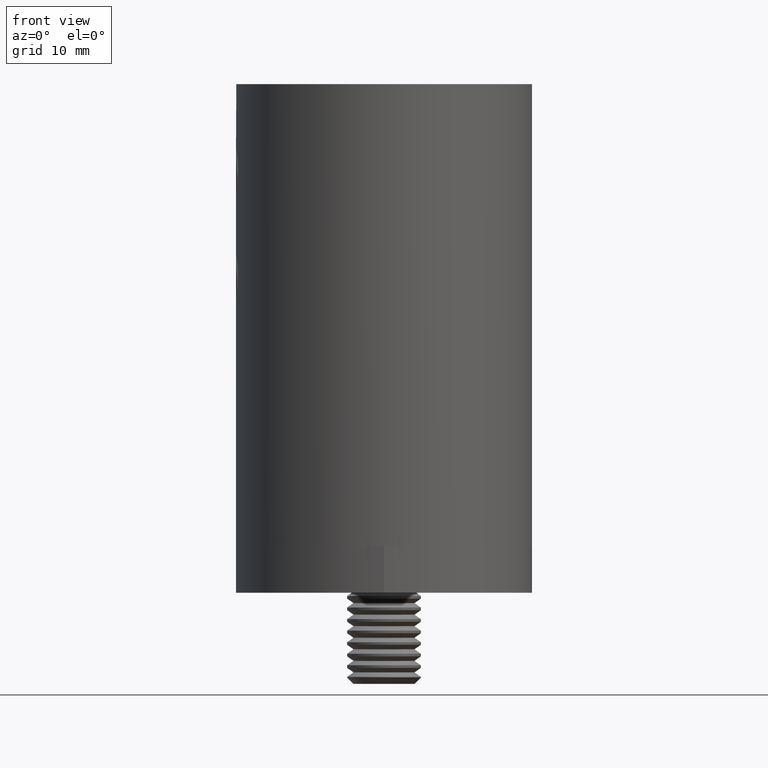
[diagram: clean part render]
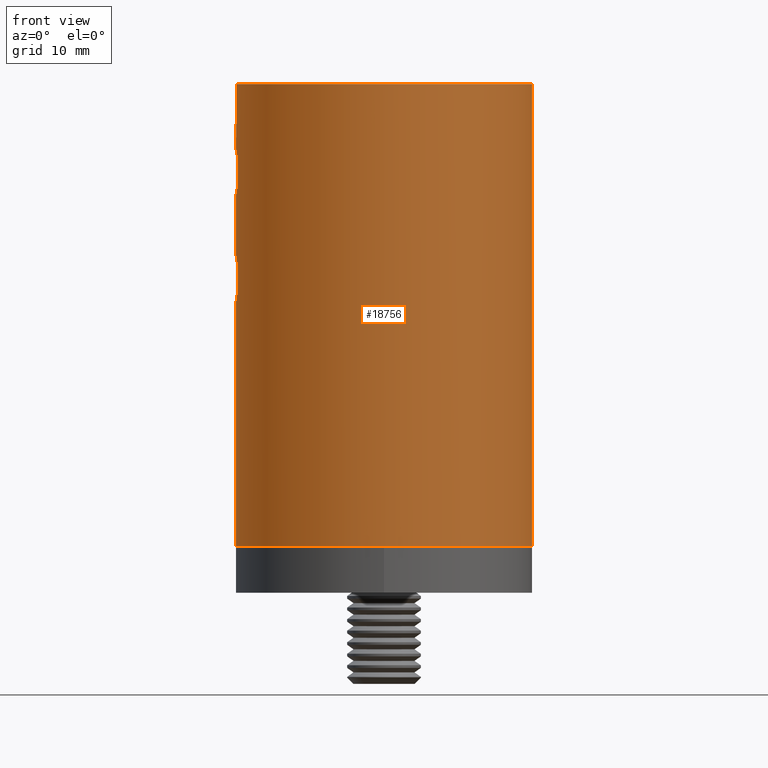
[diagram: same view with one face highlighted and labeled with its STEP entity id]
A machine part, front view. The second image highlights one B-rep face of the part: STEP entity #18756.
In plain terms, the highlighted cylindrical surface (bore or boss wall) has radius 16 mm, axis along (0, 0, 1).
Its self-contained STEP definition (entity closure, byte-faithful):
#7 = CARTESIAN_POINT ( 'NONE',  ( -15.80350251168070130, -2.499861672707218041, -9.667306376764686959 ) ) ;
#317 = CARTESIAN_POINT ( 'NONE',  ( -15.87640092462452124, -1.987022739836275420, -22.52588724854756208 ) ) ;
#390 = CARTESIAN_POINT ( 'NONE',  ( -15.82324364191536503, -2.372543552883941143, -20.19512136196161123 ) ) ;
#466 = CARTESIAN_POINT ( 'NONE',  ( -15.80606710648459945, 2.483805029018752997, -9.827817169408566755 ) ) ;
#534 = CARTESIAN_POINT ( 'NONE',  ( -15.96240569125737352, -1.106495572119110093, -23.24770843532474274 ) ) ;
#679 = CARTESIAN_POINT ( 'NONE',  ( -15.82339770301563142, 2.371509930957719448, -8.692264381868060497 ) ) ;
#722 = CARTESIAN_POINT ( 'NONE',  ( 8.150000000000011013, 13.76871453694933045, 0.000000000000000000 ) ) ;
#746 = CARTESIAN_POINT ( 'NONE',  ( -15.80346596981614304, 2.500092668231060689, -9.661891237243118269 ) ) ;
#754 = CARTESIAN_POINT ( 'NONE',  ( -15.95309248088372733, -1.260768949626729141, -7.316775439706733941 ) ) ;
#893 = CARTESIAN_POINT ( 'NONE',  ( -15.84151050614817535, -2.247342240368210842, -8.392640353381752405 ) ) ;
#928 = CARTESIAN_POINT ( 'NONE',  ( 1.252940556555171447, 15.95144872720778650, -39.83048293113979099 ) ) ;
#996 = CARTESIAN_POINT ( 'NONE',  ( 0.000000000000000000, 0.000000000000000000, -33.00000000000000000 ) ) ;
#997 = CARTESIAN_POINT ( 'NONE',  ( 1.525956392937325656, 15.92764525334669479, -43.98694218873795592 ) ) ;
#1066 = CARTESIAN_POINT ( 'NONE',  ( 1.109231536206027657, 15.96222279634701735, -44.24642170904224514 ) ) ;
#1203 = CARTESIAN_POINT ( 'NONE',  ( -2.245344190651986427, 15.84179535043164400, -43.11145182841886481 ) ) ;
#1242 = CARTESIAN_POINT ( 'NONE',  ( -15.92774250322208296, -1.525047224483064845, -11.48774827025959056 ) ) ;
#1331 = CARTESIAN_POINT ( 'NONE',  ( -0.3288858443642667662, 15.99743546037499975, -39.51626077848827379 ) ) ;
#1383 = DIRECTION ( 'NONE',  ( 0.000000000000000000, 0.000000000000000000, 1.000000000000000000 ) ) ;
#1461 = AXIS2_PLACEMENT_3D ( 'NONE', #996, #5621, #20538 ) ;
#1479 = CARTESIAN_POINT ( 'NONE',  ( -15.80345902061458929, -2.500136596893098861, -9.336853430154215872 ) ) ;
#1933 = CARTESIAN_POINT ( 'NONE',  ( -15.84159404494869783, 2.246747056407899290, -19.89156694114959123 ) ) ;
#1973 = CARTESIAN_POINT ( 'NONE',  ( -8.150000000000000355, 13.76871453694933578, -50.00000000000000000 ) ) ;
#2004 = CARTESIAN_POINT ( 'NONE',  ( -15.91481673507199446, 1.652882547917919220, -19.11732021938126636 ) ) ;
#2071 = CARTESIAN_POINT ( 'NONE',  ( -15.88922248633940093, 1.883088210293350384, -19.34758278094893669 ) ) ;
#2072 = CARTESIAN_POINT ( 'NONE',  ( -15.91492567410532644, 1.651926334815732922, -11.38368295266011287 ) ) ;
#2105 = ORIENTED_EDGE ( 'NONE', *, *, #8263, .F. ) ;
#2146 = CARTESIAN_POINT ( 'NONE',  ( -15.80350251168070486, -2.499861672707218485, -21.16730637676468163 ) ) ;
#2148 = CARTESIAN_POINT ( 'NONE',  ( -15.98755810445062409, 0.6509587533249484581, -11.91930164876156972 ) ) ;
#2216 = CARTESIAN_POINT ( 'NONE',  ( -15.95144872720779361, 1.252940556555169227, -18.83048293113980165 ) ) ;
#2363 = CARTESIAN_POINT ( 'NONE',  ( -15.84152337852460413, 2.247254387776697726, -10.60757795733184139 ) ) ;
#2373 = CARTESIAN_POINT ( 'NONE',  ( -15.82324364191535437, -2.372543552883940698, -8.695121361961600570 ) ) ;
#2429 = CARTESIAN_POINT ( 'NONE',  ( -15.99999999999999289, 1.084202172485504434E-16, -18.50000000000002487 ) ) ;
#2549 = CARTESIAN_POINT ( 'NONE',  ( -1.525047224483061736, 15.92774250322208296, -43.98774827025957990 ) ) ;
#2624 = CARTESIAN_POINT ( 'NONE',  ( 0.8068163506865948520, 15.98036376761717925, -39.62810500875100672 ) ) ;
#2692 = CARTESIAN_POINT ( 'NONE',  ( -2.500136596893099306, 15.80345902061458574, -41.83685343015421410 ) ) ;
#2764 = CARTESIAN_POINT ( 'NONE',  ( -2.247342240368209065, 15.84151050614817891, -40.89264035338172931 ) ) ;
#2834 = CARTESIAN_POINT ( 'NONE',  ( 8.150000000000000355, 13.76871453694934111, -33.00000000000000000 ) ) ;
#2835 = FACE_BOUND ( 'NONE', #10862, .T. ) ;
#2841 = CARTESIAN_POINT ( 'NONE',  ( 0.6509587533249504565, 15.98755810445062409, -44.41930164876154663 ) ) ;
#2961 = CIRCLE ( 'NONE', #1461, 16.00000000000000000 ) ;
#3237 = DIRECTION ( 'NONE',  ( 1.000000000000000000, 0.000000000000000000, 0.000000000000000000 ) ) ;
#3566 = ORIENTED_EDGE ( 'NONE', *, *, #7798, .F. ) ;
#3598 = CARTESIAN_POINT ( 'NONE',  ( -15.96240569125737707, -1.106495572119111204, -11.74770843532475162 ) ) ;
#3656 = CARTESIAN_POINT ( 'NONE',  ( -15.85233394127915574, -2.170684478348998692, -19.74906386734654617 ) ) ;
#3728 = CARTESIAN_POINT ( 'NONE',  ( -15.80349541719041895, 2.499906519796543769, -20.83525924997882228 ) ) ;
#3730 = CARTESIAN_POINT ( 'NONE',  ( -15.92764525334669479, 1.525956392937322326, -11.48694218873796125 ) ) ;
#3802 = CARTESIAN_POINT ( 'NONE',  ( -15.85253555748232479, 2.169241836718339922, -19.74644636522889130 ) ) ;
#3830 = LINE ( 'NONE', #21035, #9895 ) ;
#3873 = CARTESIAN_POINT ( 'NONE',  ( -15.92774250322207763, -1.525047224483062402, -22.98774827025959411 ) ) ;
#3939 = DIRECTION ( 'NONE',  ( 1.000000000000000000, 0.000000000000000000, 0.000000000000000000 ) ) ;
#3959 = CARTESIAN_POINT ( 'NONE',  ( -15.85233394127915574, -2.170684478349000468, -8.249063867346544399 ) ) ;
#4097 = CARTESIAN_POINT ( 'NONE',  ( -15.81585894962995376, -2.420668142417810476, -8.854265049272004973 ) ) ;
#4207 = CARTESIAN_POINT ( 'NONE',  ( -2.168402107178430516, 15.85264640334946229, -43.25484005574040935 ) ) ;
#4273 = CARTESIAN_POINT ( 'NONE',  ( -1.881455542367962641, 15.88941756032911634, -43.65429087891313742 ) ) ;
#4343 = CARTESIAN_POINT ( 'NONE',  ( -2.419509985083067249, 15.81603671450187676, -42.65002793951062898 ) ) ;
#4408 = CIRCLE ( 'NONE', #17376, 16.00000000000000000 ) ;
#4411 = CARTESIAN_POINT ( 'NONE',  ( 1.988290596189302928, 15.87624052084763626, -43.52419756693325326 ) ) ;
#4488 = CARTESIAN_POINT ( 'NONE',  ( 2.246747056407895293, 15.84159404494869783, -40.89156694114956991 ) ) ;
#4616 = AXIS2_PLACEMENT_3D ( 'NONE', #18712, #13667, #3939 ) ;
#4627 = EDGE_CURVE ( 'NONE', #14995, #14995, #4408, .T. ) ;
#4739 = LINE ( 'NONE', #1973, #6518 ) ;
#4856 = DIRECTION ( 'NONE',  ( 1.000000000000000000, 0.000000000000000000, 0.000000000000000000 ) ) ;
#5225 = CARTESIAN_POINT ( 'NONE',  ( -15.98767710712706247, 0.6479051388432867098, -18.57991559567075157 ) ) ;
#5295 = CARTESIAN_POINT ( 'NONE',  ( -15.81585894962996086, -2.420668142417813140, -20.35426504927201563 ) ) ;
#5362 = CARTESIAN_POINT ( 'NONE',  ( -15.95151097178185218, -1.252217234737674989, -23.16999175571001857 ) ) ;
#5437 = CARTESIAN_POINT ( 'NONE',  ( -15.92764525334669123, 1.525956392937322770, -22.98694218873797013 ) ) ;
#5439 = CARTESIAN_POINT ( 'NONE',  ( -15.85255037896791563, 2.169091757621978811, -10.75360227542730662 ) ) ;
#5553 = VERTEX_POINT ( 'NONE', #5870 ) ;
#5579 = CARTESIAN_POINT ( 'NONE',  ( -15.87640092462451413, -1.987022739836275864, -11.02588724854756030 ) ) ;
#5589 = CARTESIAN_POINT ( 'NONE',  ( -16.00000000000000000, -8.131516293641283255E-17, -7.000000000000026645 ) ) ;
#5621 = DIRECTION ( 'NONE',  ( -0.000000000000000000, -0.000000000000000000, 1.000000000000000000 ) ) ;
#5649 = CARTESIAN_POINT ( 'NONE',  ( -15.80604236739318758, 2.483965348626151037, -9.172886747353933501 ) ) ;
#5728 = CARTESIAN_POINT ( 'NONE',  ( -15.88910040803500756, -1.884110435080141421, -7.848755225032656213 ) ) ;
#5761 = CARTESIAN_POINT ( 'NONE',  ( -15.80612643001855488, -2.483427711985339847, -9.830381127494234761 ) ) ;
#5818 = CARTESIAN_POINT ( 'NONE',  ( -2.483427711985339847, 15.80612643001855488, -42.33038112749422766 ) ) ;
#5870 = CARTESIAN_POINT ( 'NONE',  ( -8.150000000000000355, 13.76871453694933578, 0.000000000000000000 ) ) ;
#5898 = CARTESIAN_POINT ( 'NONE',  ( 2.483965348626150149, 15.80604236739319113, -41.67288674735393528 ) ) ;
#5922 = CARTESIAN_POINT ( 'NONE',  ( -15.85264640334946229, -2.168402107178428739, -10.75484005574043067 ) ) ;
#5970 = CARTESIAN_POINT ( 'NONE',  ( -2.170684478349001800, 15.85233394127915219, -40.74906386734653552 ) ) ;
#6037 = CARTESIAN_POINT ( 'NONE',  ( -1.884110435080143198, 15.88910040803500756, -40.34875522503264023 ) ) ;
#6104 = CARTESIAN_POINT ( 'NONE',  ( 1.109447262463670647, 15.96220866737805011, -39.75367739515019139 ) ) ;
#6116 = ORIENTED_EDGE ( 'NONE', *, *, #18222, .F. ) ;
#6170 = CARTESIAN_POINT ( 'NONE',  ( -1.897353801849632760E-16, 16.00000000000000355, -39.50000000000003553 ) ) ;
#6320 = ORIENTED_EDGE ( 'NONE', *, *, #4627, .T. ) ;
#6379 = ORIENTED_EDGE ( 'NONE', *, *, #9067, .F. ) ;
#6518 = VECTOR ( 'NONE', #8309, 1000.000000000000000 ) ;
#6567 = CARTESIAN_POINT ( 'NONE',  ( -15.91503527193069445, -1.650793038997938389, -11.38452530159674758 ) ) ;
#6831 = CARTESIAN_POINT ( 'NONE',  ( -15.96222279634701025, 1.109231536206024549, -23.24642170904225935 ) ) ;
#6983 = CARTESIAN_POINT ( 'NONE',  ( -15.96220866737805011, 1.109447262463672201, -7.253677395150219809 ) ) ;
#7093 = CARTESIAN_POINT ( 'NONE',  ( -16.00001971032907022, -0.3255837222652486207, -12.00012614611530282 ) ) ;
#7200 = CARTESIAN_POINT ( 'NONE',  ( -15.99999999999999289, -0.1654332363785441795, -18.50000000000002132 ) ) ;
#7201 = CARTESIAN_POINT ( 'NONE',  ( -15.92778911225276772, 1.524503371790981499, -7.511896929298052861 ) ) ;
#7340 = CARTESIAN_POINT ( 'NONE',  ( -15.98020123595264153, -0.8098413242424427061, -7.129207097656609093 ) ) ;
#7374 = CARTESIAN_POINT ( 'NONE',  ( 0.3301022249100266648, 15.99739960002328409, -44.48350564471681423 ) ) ;
#7454 = CARTESIAN_POINT ( 'NONE',  ( 0.1654332363785450122, 16.00000000000000355, -39.50000000000002842 ) ) ;
#7525 = CARTESIAN_POINT ( 'NONE',  ( 2.371509930957718559, 15.82339770301563497, -41.19226438186804984 ) ) ;
#7592 = CARTESIAN_POINT ( 'NONE',  ( -1.252217234737675655, 15.95151097178185573, -44.16999175571002212 ) ) ;
#7664 = CARTESIAN_POINT ( 'NONE',  ( -1.539172029433665267, 15.92747579174406347, -40.00328389159881937 ) ) ;
#7798 = EDGE_CURVE ( 'NONE', #8860, #13907, #3830, .T. ) ;
#7916 = CARTESIAN_POINT ( 'NONE',  ( 16.00000000000000000, 0.000000000000000000, -50.00000000000000000 ) ) ;
#8198 = CARTESIAN_POINT ( 'NONE',  ( -15.88941756032911279, -1.881455542367965084, -11.15429087891314452 ) ) ;
#8263 = EDGE_CURVE ( 'NONE', #16271, #16271, #15780, .T. ) ;
#8309 = DIRECTION ( 'NONE',  ( 0.000000000000000000, 0.000000000000000000, 1.000000000000000000 ) ) ;
#8397 = CARTESIAN_POINT ( 'NONE',  ( -15.80604236739318758, 2.483965348626150149, -20.67288674735393528 ) ) ;
#8477 = CARTESIAN_POINT ( 'NONE',  ( -15.82343172302560674, -2.371299003963624141, -21.80860171604526343 ) ) ;
#8547 = CARTESIAN_POINT ( 'NONE',  ( -15.81597365182931014, 2.419921949467492617, -21.64863647540309444 ) ) ;
#8619 = CARTESIAN_POINT ( 'NONE',  ( -15.91503527193069445, -1.650793038997937501, -22.88452530159674936 ) ) ;
#8691 = CARTESIAN_POINT ( 'NONE',  ( -15.80606710648460300, 2.483805029018752553, -21.32781716940857208 ) ) ;
#8693 = CARTESIAN_POINT ( 'NONE',  ( -15.91481673507199801, 1.652882547917920553, -7.617320219381268132 ) ) ;
#8735 = EDGE_CURVE ( 'NONE', #17955, #5553, #4739, .T. ) ;
#8774 = CARTESIAN_POINT ( 'NONE',  ( -15.85253555748232479, 2.169241836718339922, -8.246446365228880637 ) ) ;
#8838 = CARTESIAN_POINT ( 'NONE',  ( -15.80349541719041895, 2.499906519796543325, -9.335259249978824059 ) ) ;
#8860 = VERTEX_POINT ( 'NONE', #722 ) ;
#8900 = CARTESIAN_POINT ( 'NONE',  ( -15.98767710712706602, 0.6479051388432870429, -7.079915595670763118 ) ) ;
#9014 = CARTESIAN_POINT ( 'NONE',  ( 0.1642426287511583038, 15.99999010098699159, -44.49993664631212908 ) ) ;
#9067 = EDGE_CURVE ( 'NONE', #13907, #17955, #2961, .T. ) ;
#9079 = CARTESIAN_POINT ( 'NONE',  ( -0.3255837222652461782, 16.00001971032908088, -44.50012614611529926 ) ) ;
#9138 = CARTESIAN_POINT ( 'NONE',  ( -1.650793038997934614, 15.91503527193069445, -43.88452530159674581 ) ) ;
#9181 = VERTEX_POINT ( 'NONE', #9739 ) ;
#9289 = CARTESIAN_POINT ( 'NONE',  ( 1.986479716021238184, 15.87647291073326627, -40.47326976867120862 ) ) ;
#9389 = CARTESIAN_POINT ( 'NONE',  ( -16.00000000000000000, 0.000000000000000000, -18.50000000000002842 ) ) ;
#9670 = CARTESIAN_POINT ( 'NONE',  ( -16.00000000000000000, 0.000000000000000000, -7.000000000000024869 ) ) ;
#9739 = CARTESIAN_POINT ( 'NONE',  ( 0.000000000000000000, 16.00000000000000000, -39.50000000000001421 ) ) ;
#9895 = VECTOR ( 'NONE', #20973, 1000.000000000000000 ) ;
#10031 = CARTESIAN_POINT ( 'NONE',  ( -15.88941756032910924, -1.881455542367963973, -22.65429087891312676 ) ) ;
#10101 = CARTESIAN_POINT ( 'NONE',  ( -15.84179535043163689, -2.245344190651985983, -22.11145182841886481 ) ) ;
#10171 = CARTESIAN_POINT ( 'NONE',  ( -15.99999999999999645, 0.1654332363785450122, -18.50000000000002842 ) ) ;
#10173 = CARTESIAN_POINT ( 'NONE',  ( -15.87624052084764692, 1.988290596189301596, -11.02419756693327990 ) ) ;
#10177 = VERTEX_POINT ( 'NONE', #9670 ) ;
#10254 = CARTESIAN_POINT ( 'NONE',  ( -15.80612643001855133, -2.483427711985340292, -21.33038112749422766 ) ) ;
#10256 = CARTESIAN_POINT ( 'NONE',  ( -15.96222279634701380, 1.109231536206024327, -11.74642170904224869 ) ) ;
#10328 = CARTESIAN_POINT ( 'NONE',  ( -15.91492567410532999, 1.651926334815732034, -22.88368295266011287 ) ) ;
#10401 = CARTESIAN_POINT ( 'NONE',  ( -15.99743546037499975, -0.3288858443642618257, -18.51626077848827379 ) ) ;
#10403 = CARTESIAN_POINT ( 'NONE',  ( -15.99743674345869415, 0.3280518095241419241, -7.016258547415800351 ) ) ;
#10476 = CARTESIAN_POINT ( 'NONE',  ( -15.95144872720779006, 1.252940556555168783, -7.330482931139788327 ) ) ;
#10556 = CARTESIAN_POINT ( 'NONE',  ( -16.00000000000000355, -0.1654332363785434856, -7.000000000000025757 ) ) ;
#10567 = CARTESIAN_POINT ( 'NONE',  ( -15.95151097178185573, -1.252217234737677209, -11.66999175571001146 ) ) ;
#10657 = CARTESIAN_POINT ( 'NONE',  ( 1.651926334815734920, 15.91492567410532999, -43.88368295266008801 ) ) ;
#10729 = CARTESIAN_POINT ( 'NONE',  ( 2.419644226415068378, 15.81601659681034278, -41.35007019547618512 ) ) ;
#10797 = CARTESIAN_POINT ( 'NONE',  ( -1.987022739836278751, 15.87640092462451058, -43.52588724854752655 ) ) ;
#10862 = EDGE_LOOP ( 'NONE', ( #2105 ) ) ;
#10864 = CARTESIAN_POINT ( 'NONE',  ( 2.169091757621980143, 15.85255037896790853, -43.25360227542727642 ) ) ;
#10925 = CARTESIAN_POINT ( 'NONE',  ( -1.106495572119109871, 15.96240569125736997, -44.24770843532476050 ) ) ;
#11125 = CARTESIAN_POINT ( 'NONE',  ( -0.1654332363785406823, 16.00000000000000355, -39.50000000000003553 ) ) ;
#11304 = CARTESIAN_POINT ( 'NONE',  ( 0.000000000000000000, 0.000000000000000000, -50.00000000000000000 ) ) ;
#11545 = B_SPLINE_CURVE_WITH_KNOTS ( 'NONE', 3,
 ( #12358, #7454, #20467, #14132, #2624, #6104, #928, #13925, #18829, #12565, #9289, #17347, #4488, #7525, #10729, #5898, #18764, #14200, #20674, #12282, #14062, #12420, #10864, #4411, #13995, #10657, #997, #15833, #1066, #18901, #2841, #7374, #9014, #9079, #20397, #10925, #7592, #2549, #9138, #4273, #10797, #4207, #1203, #15556, #4343, #5818, #15629, #2692, #15695, #17417, #15763, #2764, #5970, #18973, #6037, #7664, #19044, #20878, #19181, #1331, #11125, #6170 ),
 .UNSPECIFIED., .T., .F.,
 ( 4, 2, 2, 2, 2, 2, 2, 2, 2, 2, 2, 2, 2, 2, 2, 2, 2, 2, 2, 2, 2, 2, 2, 2, 2, 2, 2, 2, 2, 2, 4 ),
 ( 0.000000000000000000, 0.0004891981462341162207, 0.0009783962924682324414, 0.001467594438702348554, 0.001956792584936464883, 0.002445990731170581429, 0.002935188877404697107, 0.003424387023638813653, 0.003913585169872929766, 0.004402783316107046312, 0.004891981462341162858, 0.005381179608575278536, 0.005870377754809394215, 0.006359575901043510761, 0.006848774047277627307, 0.007337972193511742985, 0.007827170339745859531, 0.008805566632214092623, 0.009294764778448203965, 0.009783962924682318776, 0.01027316107091643012, 0.01076235921715054319, 0.01125155736338465627, 0.01174075550961876761, 0.01222995365585288069, 0.01271915180208699377, 0.01320834994832110684, 0.01369754809455521992, 0.01467594438702342872, 0.01516514253325753660, 0.01565434067949163927 ),
 .UNSPECIFIED. ) ;
#11655 = CARTESIAN_POINT ( 'NONE',  ( -15.80345902061458574, -2.500136596893098861, -20.83685343015421765 ) ) ;
#11727 = CARTESIAN_POINT ( 'NONE',  ( -15.84151050614817535, -2.247342240368209954, -19.89264035338175063 ) ) ;
#11755 = CIRCLE ( 'NONE', #4616, 16.00000000000000000 ) ;
#11803 = CARTESIAN_POINT ( 'NONE',  ( -15.99743674345869415, 0.3280518095241421461, -18.51625854741580568 ) ) ;
#11805 = CARTESIAN_POINT ( 'NONE',  ( -15.88903459083775616, 1.884754519590194466, -11.15070363260168307 ) ) ;
#11872 = CARTESIAN_POINT ( 'NONE',  ( -15.81601659681033567, 2.419644226415069266, -20.35007019547619933 ) ) ;
#11874 = CARTESIAN_POINT ( 'NONE',  ( -15.98036463566804954, 0.8067820723244090164, -11.87189961498083157 ) ) ;
#11943 = CARTESIAN_POINT ( 'NONE',  ( -15.98942922284849999, -0.6550303360437369493, -23.43455086294358480 ) ) ;
#11945 = CARTESIAN_POINT ( 'NONE',  ( -16.00000000000000000, 0.1654332363785451232, -7.000000000000026645 ) ) ;
#11967 = FACE_BOUND ( 'NONE', #17448, .T. ) ;
#12027 = CARTESIAN_POINT ( 'NONE',  ( -15.81601659681034988, 2.419644226415069710, -8.850070195476209989 ) ) ;
#12084 = EDGE_CURVE ( 'NONE', #5553, #8860, #11755, .T. ) ;
#12093 = CARTESIAN_POINT ( 'NONE',  ( -15.82322682364502242, 2.372658450600115820, -10.30459498615443614 ) ) ;
#12167 = CARTESIAN_POINT ( 'NONE',  ( -15.92747579174406347, -1.539172029433661715, -19.00328389159882647 ) ) ;
#12168 = CARTESIAN_POINT ( 'NONE',  ( -15.99739960002327699, 0.3301022249100251105, -11.98350564471680713 ) ) ;
#12251 = CARTESIAN_POINT ( 'NONE',  ( -15.98753103381767104, -0.6518885259027863421, -7.080874585951533184 ) ) ;
#12282 = CARTESIAN_POINT ( 'NONE',  ( 2.419921949467492617, 15.81597365182931370, -42.64863647540310865 ) ) ;
#12316 = CARTESIAN_POINT ( 'NONE',  ( -15.98020123595264153, -0.8098413242424432612, -18.62920709765661087 ) ) ;
#12358 = CARTESIAN_POINT ( 'NONE',  ( -1.897353801849632760E-16, 16.00000000000000355, -39.50000000000003553 ) ) ;
#12420 = CARTESIAN_POINT ( 'NONE',  ( 2.247254387776699946, 15.84152337852460413, -43.10757795733184139 ) ) ;
#12565 = CARTESIAN_POINT ( 'NONE',  ( 1.883088210293348164, 15.88922248633940093, -40.34758278094891892 ) ) ;
#12967 = EDGE_LOOP ( 'NONE', ( #6379, #3566, #20534, #15463 ) ) ;
#13313 = CARTESIAN_POINT ( 'NONE',  ( -15.80346596981614304, 2.500092668231060689, -21.16189123724312182 ) ) ;
#13358 = CARTESIAN_POINT ( 'NONE',  ( -15.84179535043162979, -2.245344190651985539, -10.61145182841885948 ) ) ;
#13382 = CARTESIAN_POINT ( 'NONE',  ( -15.80602764122868820, -2.484052892959633940, -20.67428677139689697 ) ) ;
#13455 = CARTESIAN_POINT ( 'NONE',  ( -15.92778911225276417, 1.524503371790981721, -19.01189692929805375 ) ) ;
#13504 = CARTESIAN_POINT ( 'NONE',  ( -8.150000000000000355, 13.76871453694933578, -33.00000000000000000 ) ) ;
#13531 = CARTESIAN_POINT ( 'NONE',  ( -15.99999010098698804, 0.1642426287511534189, -23.49993664631212553 ) ) ;
#13533 = CARTESIAN_POINT ( 'NONE',  ( -15.81597365182931370, 2.419921949467491729, -10.14863647540309977 ) ) ;
#13564 = ORIENTED_EDGE ( 'NONE', *, *, #19802, .F. ) ;
#13610 = CARTESIAN_POINT ( 'NONE',  ( -15.95124297675815050, 1.255497401840281801, -23.16799641339772364 ) ) ;
#13667 = DIRECTION ( 'NONE',  ( 0.000000000000000000, 0.000000000000000000, 1.000000000000000000 ) ) ;
#13687 = CARTESIAN_POINT ( 'NONE',  ( -15.92747579174406880, -1.539172029433663047, -7.503283891598828248 ) ) ;
#13742 = CARTESIAN_POINT ( 'NONE',  ( -15.84159404494869428, 2.246747056407898402, -8.391566941149577019 ) ) ;
#13907 = VERTEX_POINT ( 'NONE', #2834 ) ;
#13922 = EDGE_LOOP ( 'NONE', ( #6320 ) ) ;
#13925 = CARTESIAN_POINT ( 'NONE',  ( 1.524503371790983275, 15.92778911225276417, -40.01189692929805375 ) ) ;
#13995 = CARTESIAN_POINT ( 'NONE',  ( 1.884754519590196020, 15.88903459083775616, -43.65070363260165465 ) ) ;
#14062 = CARTESIAN_POINT ( 'NONE',  ( 2.372658450600116709, 15.82322682364501532, -42.80459498615441305 ) ) ;
#14132 = CARTESIAN_POINT ( 'NONE',  ( 0.6479051388432869318, 15.98767710712706958, -39.57991559567076223 ) ) ;
#14200 = CARTESIAN_POINT ( 'NONE',  ( 2.500092668231061577, 15.80346596981614304, -42.16189123724311116 ) ) ;
#14568 = B_SPLINE_CURVE_WITH_KNOTS ( 'NONE', 3,
 ( #18440, #11945, #10403, #8900, #15226, #6983, #10476, #7201, #8693, #18508, #18578, #8774, #13742, #679, #12027, #5649, #8838, #746, #466, #13533, #12093, #2363, #5439, #10173, #11805, #2072, #3730, #18360, #10256, #11874, #2148, #12168, #19683, #7093, #17277, #3598, #10567, #1242, #6567, #8198, #5579, #5922, #13358, #15204, #18694, #5761, #7, #1479, #16895, #4097, #2373, #893, #3959, #15379, #5728, #13687, #754, #7340, #12251, #15311, #10556, #5589 ),
 .UNSPECIFIED., .T., .F.,
 ( 4, 2, 2, 2, 2, 2, 2, 2, 2, 2, 2, 2, 2, 2, 2, 2, 2, 2, 2, 2, 2, 2, 2, 2, 2, 2, 2, 2, 2, 2, 4 ),
 ( 0.000000000000000000, 0.0004891981462341174133, 0.0009783962924682346098, 0.001467594438702352240, 0.001956792584936469653, 0.002445990731170583597, 0.002935188877404697541, 0.003424387023638811485, 0.003913585169872925429, 0.004402783316107039373, 0.004891981462341153317, 0.005381179608575267261, 0.005870377754809381204, 0.006359575901043495148, 0.006848774047277609092, 0.007337972193511723036, 0.007827170339745836980, 0.008805566632214064868, 0.009294764778448179679, 0.009783962924682292756, 0.01027316107091640583, 0.01076235921715052064, 0.01125155736338463372, 0.01174075550961874853, 0.01222995365585286334, 0.01271915180208697642, 0.01320834994832109123, 0.01369754809455520431, 0.01467594438702342872, 0.01516514253325754007, 0.01565434067949165314 ),
 .UNSPECIFIED. ) ;
#14945 = CARTESIAN_POINT ( 'NONE',  ( -16.00001971032908088, -0.3255837222652499530, -23.50012614611530637 ) ) ;
#14995 = VERTEX_POINT ( 'NONE', #7916 ) ;
#15009 = CARTESIAN_POINT ( 'NONE',  ( -15.82339770301563142, 2.371509930957718559, -20.19226438186806050 ) ) ;
#15086 = CARTESIAN_POINT ( 'NONE',  ( -15.88903459083775971, 1.884754519590193356, -22.65070363260169017 ) ) ;
#15154 = CARTESIAN_POINT ( 'NONE',  ( -15.87647291073325562, 1.986479716021241515, -19.47326976867124060 ) ) ;
#15204 = CARTESIAN_POINT ( 'NONE',  ( -15.82343172302561740, -2.371299003963624141, -10.30860171604526521 ) ) ;
#15225 = CARTESIAN_POINT ( 'NONE',  ( -15.99999999999999289, 1.084202172485504434E-16, -18.50000000000002487 ) ) ;
#15226 = CARTESIAN_POINT ( 'NONE',  ( -15.98036376761718280, 0.8068163506865961843, -7.128105008751022709 ) ) ;
#15282 = CYLINDRICAL_SURFACE ( 'NONE', #16101, 16.00000000000000000 ) ;
#15311 = CARTESIAN_POINT ( 'NONE',  ( -15.99743546037500685, -0.3288858443642624918, -7.016260778488273786 ) ) ;
#15379 = CARTESIAN_POINT ( 'NONE',  ( -15.87611022944811268, -1.989343226491896210, -7.977099530588406040 ) ) ;
#15437 = CARTESIAN_POINT ( 'NONE',  ( -15.95309248088372733, -1.260768949626729585, -18.81677543970673128 ) ) ;
#15463 = ORIENTED_EDGE ( 'NONE', *, *, #8735, .F. ) ;
#15556 = CARTESIAN_POINT ( 'NONE',  ( -2.371299003963626806, 15.82343172302561030, -42.80860171604525988 ) ) ;
#15629 = CARTESIAN_POINT ( 'NONE',  ( -2.499861672707217597, 15.80350251168070486, -42.16730637676466387 ) ) ;
#15695 = CARTESIAN_POINT ( 'NONE',  ( -2.484052892959634384, 15.80602764122869885, -41.67428677139690052 ) ) ;
#15763 = CARTESIAN_POINT ( 'NONE',  ( -2.372543552883939810, 15.82324364191536858, -41.19512136196161123 ) ) ;
#15780 = B_SPLINE_CURVE_WITH_KNOTS ( 'NONE', 3,
 ( #15225, #10171, #11803, #5225, #18438, #16587, #2216, #13455, #2004, #2071, #15154, #3802, #1933, #15009, #11872, #8397, #3728, #13313, #8691, #8547, #18358, #19930, #19780, #20075, #15086, #10328, #5437, #13610, #6831, #18217, #18292, #16733, #13531, #14945, #11943, #534, #5362, #3873, #8619, #10031, #317, #19996, #10101, #8477, #19852, #10254, #2146, #11655, #13382, #5295, #390, #11727, #3656, #16660, #16887, #12167, #15437, #12316, #20286, #10401, #7200, #2429 ),
 .UNSPECIFIED., .T., .F.,
 ( 4, 2, 2, 2, 2, 2, 2, 2, 2, 2, 2, 2, 2, 2, 2, 2, 2, 2, 2, 2, 2, 2, 2, 2, 2, 2, 2, 2, 2, 2, 4 ),
 ( 0.000000000000000000, 0.0004891981462341151365, 0.0009783962924682300562, 0.001467594438702344434, 0.001956792584936458811, 0.002445990731170573189, 0.002935188877404687133, 0.003424387023638801944, 0.003913585169872915888, 0.004402783316107029832, 0.004891981462341144643, 0.005381179608575258587, 0.005870377754809372531, 0.006359575901043487342, 0.006848774047277602153, 0.007337972193511716097, 0.007827170339745830041, 0.008805566632214057929, 0.009294764778448174475, 0.009783962924682289286, 0.01027316107091640410, 0.01076235921715051891, 0.01125155736338463372, 0.01174075550961874853, 0.01222995365585286508, 0.01271915180208697989, 0.01320834994832109470, 0.01369754809455521125, 0.01467594438702343219, 0.01516514253325754007, 0.01565434067949165314 ),
 .UNSPECIFIED. ) ;
#15798 = FACE_OUTER_BOUND ( 'NONE', #12967, .T. ) ;
#15833 = CARTESIAN_POINT ( 'NONE',  ( 1.255497401840284466, 15.95124297675815050, -44.16799641339771654 ) ) ;
#16101 = AXIS2_PLACEMENT_3D ( 'NONE', #11304, #1383, #4856 ) ;
#16271 = VERTEX_POINT ( 'NONE', #9389 ) ;
#16587 = CARTESIAN_POINT ( 'NONE',  ( -15.96220866737805366, 1.109447262463673312, -18.75367739515021981 ) ) ;
#16660 = CARTESIAN_POINT ( 'NONE',  ( -15.87611022944810912, -1.989343226491896655, -19.47709953058840426 ) ) ;
#16733 = CARTESIAN_POINT ( 'NONE',  ( -15.99739960002328054, 0.3301022249100235006, -23.48350564471681778 ) ) ;
#16832 = FACE_OUTER_BOUND ( 'NONE', #13922, .T. ) ;
#16887 = CARTESIAN_POINT ( 'NONE',  ( -15.88910040803500756, -1.884110435080140311, -19.34875522503264733 ) ) ;
#16895 = CARTESIAN_POINT ( 'NONE',  ( -15.80602764122869175, -2.484052892959632608, -9.174286771396884532 ) ) ;
#17080 = FACE_BOUND ( 'NONE', #17722, .T. ) ;
#17277 = CARTESIAN_POINT ( 'NONE',  ( -15.98942922284851065, -0.6550303360437359501, -11.93455086294359546 ) ) ;
#17347 = CARTESIAN_POINT ( 'NONE',  ( 2.169241836718340366, 15.85253555748232479, -40.74644636522886287 ) ) ;
#17376 = AXIS2_PLACEMENT_3D ( 'NONE', #18071, #19508, #3237 ) ;
#17417 = CARTESIAN_POINT ( 'NONE',  ( -2.420668142417813584, 15.81585894962995731, -41.35426504927199431 ) ) ;
#17448 = EDGE_LOOP ( 'NONE', ( #6116 ) ) ;
#17722 = EDGE_LOOP ( 'NONE', ( #13564 ) ) ;
#17955 = VERTEX_POINT ( 'NONE', #13504 ) ;
#18071 = CARTESIAN_POINT ( 'NONE',  ( 0.000000000000000000, 0.000000000000000000, -50.00000000000000000 ) ) ;
#18217 = CARTESIAN_POINT ( 'NONE',  ( -15.98036463566805310, 0.8067820723244084613, -23.37189961498082980 ) ) ;
#18222 = EDGE_CURVE ( 'NONE', #9181, #9181, #11545, .T. ) ;
#18292 = CARTESIAN_POINT ( 'NONE',  ( -15.98755810445063119, 0.6509587533249472369, -23.41930164876156439 ) ) ;
#18358 = CARTESIAN_POINT ( 'NONE',  ( -15.82322682364501887, 2.372658450600116264, -21.80459498615443437 ) ) ;
#18360 = CARTESIAN_POINT ( 'NONE',  ( -15.95124297675815050, 1.255497401840280691, -11.66799641339772542 ) ) ;
#18438 = CARTESIAN_POINT ( 'NONE',  ( -15.98036376761717570, 0.8068163506865970724, -18.62810500875102804 ) ) ;
#18440 = CARTESIAN_POINT ( 'NONE',  ( -16.00000000000000000, -8.131516293641283255E-17, -7.000000000000026645 ) ) ;
#18508 = CARTESIAN_POINT ( 'NONE',  ( -15.88922248633939738, 1.883088210293351050, -7.847582780948937575 ) ) ;
#18578 = CARTESIAN_POINT ( 'NONE',  ( -15.87647291073325917, 1.986479716021240849, -7.973269768671225499 ) ) ;
#18694 = CARTESIAN_POINT ( 'NONE',  ( -15.81603671450186255, -2.419509985083067694, -10.15002793951063786 ) ) ;
#18712 = CARTESIAN_POINT ( 'NONE',  ( 0.000000000000000000, 0.000000000000000000, 0.000000000000000000 ) ) ;
#18756 = ADVANCED_FACE ( 'NONE', ( #2835, #17080, #11967, #15798, #16832 ), #15282, .T. ) ;
#18764 = CARTESIAN_POINT ( 'NONE',  ( 2.499906519796543325, 15.80349541719041895, -41.83525924997879031 ) ) ;
#18829 = CARTESIAN_POINT ( 'NONE',  ( 1.652882547917917888, 15.91481673507200156, -40.11732021938126280 ) ) ;
#18901 = CARTESIAN_POINT ( 'NONE',  ( 0.8067820723244113479, 15.98036463566804954, -44.37189961498080493 ) ) ;
#18973 = CARTESIAN_POINT ( 'NONE',  ( -1.989343226491896655, 15.87611022944810557, -40.47709953058839005 ) ) ;
#19044 = CARTESIAN_POINT ( 'NONE',  ( -1.260768949626728253, 15.95309248088373089, -39.81677543970672417 ) ) ;
#19181 = CARTESIAN_POINT ( 'NONE',  ( -0.6518885259027915602, 15.98753103381767104, -39.58087458595152697 ) ) ;
#19508 = DIRECTION ( 'NONE',  ( 0.000000000000000000, 0.000000000000000000, 1.000000000000000000 ) ) ;
#19683 = CARTESIAN_POINT ( 'NONE',  ( -15.99999010098698804, 0.1642426287511555838, -11.99993664631212020 ) ) ;
#19780 = CARTESIAN_POINT ( 'NONE',  ( -15.85255037896792274, 2.169091757621979255, -22.25360227542731195 ) ) ;
#19802 = EDGE_CURVE ( 'NONE', #10177, #10177, #14568, .T. ) ;
#19852 = CARTESIAN_POINT ( 'NONE',  ( -15.81603671450186965, -2.419509985083067249, -21.65002793951064675 ) ) ;
#19930 = CARTESIAN_POINT ( 'NONE',  ( -15.84152337852460413, 2.247254387776697726, -22.10757795733184139 ) ) ;
#19996 = CARTESIAN_POINT ( 'NONE',  ( -15.85264640334946584, -2.168402107178429183, -22.25484005574043422 ) ) ;
#20075 = CARTESIAN_POINT ( 'NONE',  ( -15.87624052084764692, 1.988290596189301596, -22.52419756693327102 ) ) ;
#20286 = CARTESIAN_POINT ( 'NONE',  ( -15.98753103381767637, -0.6518885259027842327, -18.58087458595154118 ) ) ;
#20397 = CARTESIAN_POINT ( 'NONE',  ( -0.6550303360437297329, 15.98942922284853019, -44.43455086294360257 ) ) ;
#20467 = CARTESIAN_POINT ( 'NONE',  ( 0.3280518095241423127, 15.99743674345870126, -39.51625854741580213 ) ) ;
#20534 = ORIENTED_EDGE ( 'NONE', *, *, #12084, .F. ) ;
#20538 = DIRECTION ( 'NONE',  ( -1.000000000000000000, 3.552713678800500929E-15, 0.000000000000000000 ) ) ;
#20674 = CARTESIAN_POINT ( 'NONE',  ( 2.483805029018752553, 15.80606710648460655, -42.32781716940855432 ) ) ;
#20878 = CARTESIAN_POINT ( 'NONE',  ( -0.8098413242424431502, 15.98020123595263797, -39.62920709765658245 ) ) ;
#20973 = DIRECTION ( 'NONE',  ( -0.000000000000000000, -0.000000000000000000, -1.000000000000000000 ) ) ;
#21035 = CARTESIAN_POINT ( 'NONE',  ( 8.149999999999995026, 13.76871453694933933, -50.00000000000000000 ) ) ;